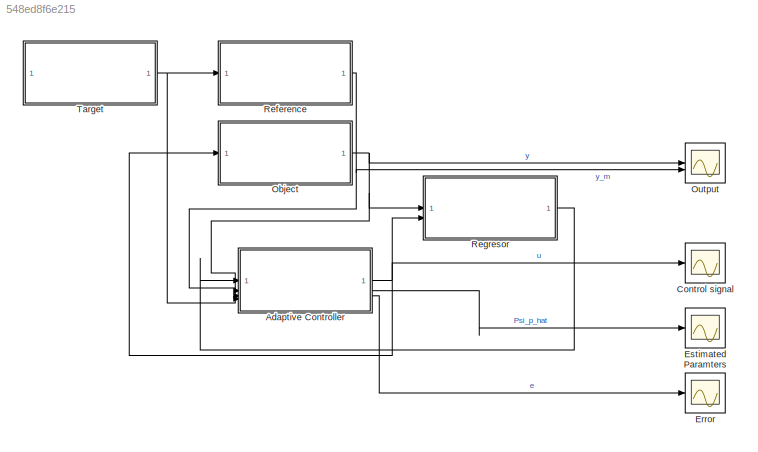
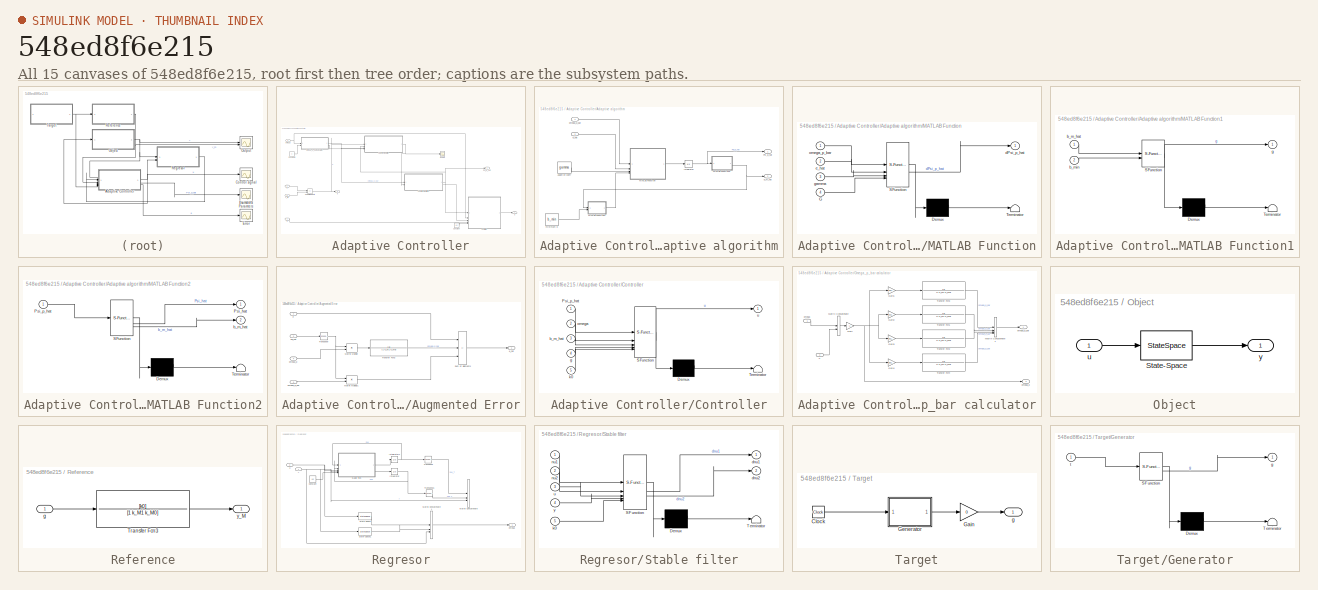
[diagram: thumbnail index - all 15 canvases of the model, root first then tree order]
MODEL slx_548ed8f6e215
KIND model
CONFIG AbsTol = auto
CONFIG EnableMultiTasking = off
CONFIG FixedStep = 1e-3
CONFIG MaxStep = auto
CONFIG MinStep = auto
CONFIG RelTol = 1e-3
CONFIG SampleTimeConstraint = Unconstrained
CONFIG SolverName = FixedStepAuto
CONFIG StartTime = 0.0
CONFIG StopTime = 200
BLOCK [SubSystem] Adaptive Controller
BLOCK [SubSystem] Adaptive Controller/Adaptive algorithm
BLOCK [Constant] Adaptive Controller/Adaptive algorithm/Adaptive coeff
  Value = gamma
BLOCK [Integrator] Adaptive Controller/Adaptive algorithm/Integrator
  InitialCondition = 1
BLOCK [SubSystem] Adaptive Controller/Adaptive algorithm/MATLAB Function
  ErrorFcn = Stateflow.Translate.translate
  PermitHierarchicalResolution = ExplicitOnly
  SFBlockType = MATLAB Function
  TreatAsAtomicUnit = on
BLOCK [Demux] Adaptive Controller/Adaptive algorithm/MATLAB Function/ Demux 
  Outputs = 1
BLOCK [S-Function] Adaptive Controller/Adaptive algorithm/MATLAB Function/ SFunction 
  EnableBusSupport = on
  FunctionName = sf_sfun
  PortCounts = [4 2]
  SFcnIsStateOwnerBlock = off
  SFunctionDeploymentMode = off
  Tag = Stateflow S-Function 3
BLOCK [Terminator] Adaptive Controller/Adaptive algorithm/MATLAB Function/ Terminator 
BLOCK [Inport] Adaptive Controller/Adaptive algorithm/MATLAB Function/G
  Port = 4
BLOCK [Outport] Adaptive Controller/Adaptive algorithm/MATLAB Function/dPsi_p_hat
BLOCK [Inport] Adaptive Controller/Adaptive algorithm/MATLAB Function/e_hat
  Port = 2
BLOCK [Inport] Adaptive Controller/Adaptive algorithm/MATLAB Function/gamma
  Port = 3
BLOCK [Inport] Adaptive Controller/Adaptive algorithm/MATLAB Function/omega_p_bar
BLOCK [SubSystem] Adaptive Controller/Adaptive algorithm/MATLAB Function1
  ErrorFcn = Stateflow.Translate.translate
  PermitHierarchicalResolution = ExplicitOnly
  SFBlockType = MATLAB Function
  TreatAsAtomicUnit = on
BLOCK [Demux] Adaptive Controller/Adaptive algorithm/MATLAB Function1/ Demux 
  Outputs = 1
BLOCK [S-Function] Adaptive Controller/Adaptive algorithm/MATLAB Function1/ SFunction 
  EnableBusSupport = on
  FunctionName = sf_sfun
  PortCounts = [2 2]
  SFcnIsStateOwnerBlock = off
  SFunctionDeploymentMode = off
  Tag = Stateflow S-Function 5
BLOCK [Terminator] Adaptive Controller/Adaptive algorithm/MATLAB Function1/ Terminator 
BLOCK [Inport] Adaptive Controller/Adaptive algorithm/MATLAB Function1/b_m_hat
BLOCK [Inport] Adaptive Controller/Adaptive algorithm/MATLAB Function1/b_min
  Port = 2
BLOCK [Outport] Adaptive Controller/Adaptive algorithm/MATLAB Function1/g
BLOCK [SubSystem] Adaptive Controller/Adaptive algorithm/MATLAB Function2
  ErrorFcn = Stateflow.Translate.translate
  PermitHierarchicalResolution = ExplicitOnly
  SFBlockType = MATLAB Function
  TreatAsAtomicUnit = on
BLOCK [Demux] Adaptive Controller/Adaptive algorithm/MATLAB Function2/ Demux 
  Outputs = 1
BLOCK [S-Function] Adaptive Controller/Adaptive algorithm/MATLAB Function2/ SFunction 
  EnableBusSupport = on
  FunctionName = sf_sfun
  PortCounts = [1 3]
  SFcnIsStateOwnerBlock = off
  SFunctionDeploymentMode = off
  Tag = Stateflow S-Function 6
BLOCK [Terminator] Adaptive Controller/Adaptive algorithm/MATLAB Function2/ Terminator 
BLOCK [Outport] Adaptive Controller/Adaptive algorithm/MATLAB Function2/Psi_hat
BLOCK [Inport] Adaptive Controller/Adaptive algorithm/MATLAB Function2/Psi_p_hat
BLOCK [Outport] Adaptive Controller/Adaptive algorithm/MATLAB Function2/b_m_hat
  Port = 2
BLOCK [Outport] Adaptive Controller/Adaptive algorithm/Psi_p_hat
BLOCK [Outport] Adaptive Controller/Adaptive algorithm/b_m_hat
  Port = 2
BLOCK [Inport] Adaptive Controller/Adaptive algorithm/e_hat
  Port = 2
BLOCK [Constant] Adaptive Controller/Adaptive algorithm/minimum b
  Value = b_min
BLOCK [Inport] Adaptive Controller/Adaptive algorithm/omega_p_bar
BLOCK [SubSystem] Adaptive Controller/Augmented Error
BLOCK [Product] Adaptive Controller/Augmented Error/Matrix Multiply
  Multiplication = Matrix(*)
BLOCK [Product] Adaptive Controller/Augmented Error/Matrix Multiply1
  Multiplication = Matrix(*)
BLOCK [Inport] Adaptive Controller/Augmented Error/Psi_hat
  Port = 2
BLOCK [Sum] Adaptive Controller/Augmented Error/Sum of Elements
  IconShape = rectangular
  Inputs = ++-
BLOCK [TransferFcn] Adaptive Controller/Augmented Error/Transfer Fcn3
  Denominator = [1 k_M1 k_M0]
BLOCK [Math] Adaptive Controller/Augmented Error/Transpose
  Operator = transpose
BLOCK [Inport] Adaptive Controller/Augmented Error/e
BLOCK [Outport] Adaptive Controller/Augmented Error/e_hat
BLOCK [Inport] Adaptive Controller/Augmented Error/omega_p
  Port = 4
BLOCK [Inport] Adaptive Controller/Augmented Error/omega_p_bar
  Port = 3
BLOCK [Constant] Adaptive Controller/Constant
  Value = k0
BLOCK [Constant] Adaptive Controller/Constant1
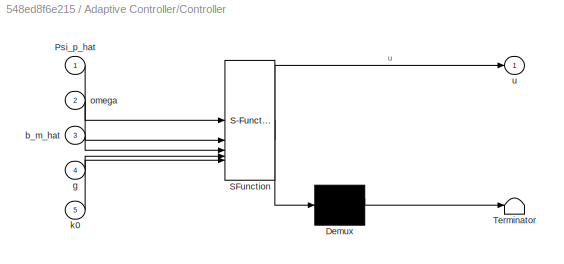
BLOCK [SubSystem] Adaptive Controller/Controller
  ErrorFcn = Stateflow.Translate.translate
  PermitHierarchicalResolution = ExplicitOnly
  SFBlockType = MATLAB Function
  TreatAsAtomicUnit = on
BLOCK [Demux] Adaptive Controller/Controller/ Demux 
  Outputs = 1
BLOCK [S-Function] Adaptive Controller/Controller/ SFunction 
  EnableBusSupport = on
  FunctionName = sf_sfun
  PortCounts = [5 2]
  SFcnIsStateOwnerBlock = off
  SFunctionDeploymentMode = off
  Tag = Stateflow S-Function 4
BLOCK [Terminator] Adaptive Controller/Controller/ Terminator 
BLOCK [Inport] Adaptive Controller/Controller/Psi_p_hat
BLOCK [Inport] Adaptive Controller/Controller/b_m_hat
  Port = 3
BLOCK [Inport] Adaptive Controller/Controller/g
  Port = 4
BLOCK [Inport] Adaptive Controller/Controller/k0
  Port = 5
BLOCK [Inport] Adaptive Controller/Controller/omega
  Port = 2
BLOCK [Outport] Adaptive Controller/Controller/u
BLOCK [SubSystem] Adaptive Controller/Omega_p_bar calculator
BLOCK [Gain] Adaptive Controller/Omega_p_bar calculator/Gain
  Gain = -1
BLOCK [Gain] Adaptive Controller/Omega_p_bar calculator/Gain1
  Gain = [1,0,0,0]
  Multiplication = Matrix(K*u)
BLOCK [Gain] Adaptive Controller/Omega_p_bar calculator/Gain2
  Gain = [0,1,0,0]
  Multiplication = Matrix(K*u)
BLOCK [Gain] Adaptive Controller/Omega_p_bar calculator/Gain3
  Gain = [0,0,1,0]
  Multiplication = Matrix(K*u)
BLOCK [Gain] Adaptive Controller/Omega_p_bar calculator/Gain4
  Gain = [0,0,0,1]
  Multiplication = Matrix(K*u)
BLOCK [Concatenate] Adaptive Controller/Omega_p_bar calculator/Matrix Concatenate
  ConcatenateDimension = 2
BLOCK [Concatenate] Adaptive Controller/Omega_p_bar calculator/Matrix Concatenate1
  ConcatenateDimension = 2
  NumInputs = 4
BLOCK [TransferFcn] Adaptive Controller/Omega_p_bar calculator/Transfer Fcn1
  Denominator = [1 k_M1 k_M0]
BLOCK [TransferFcn] Adaptive Controller/Omega_p_bar calculator/Transfer Fcn2
  Denominator = [1 k_M1 k_M0]
BLOCK [TransferFcn] Adaptive Controller/Omega_p_bar calculator/Transfer Fcn3
  Denominator = [1 k_M1 k_M0]
BLOCK [TransferFcn] Adaptive Controller/Omega_p_bar calculator/Transfer Fcn4
  Denominator = [1 k_M1 k_M0]
BLOCK [Inport] Adaptive Controller/Omega_p_bar calculator/omega
BLOCK [Outport] Adaptive Controller/Omega_p_bar calculator/omega_p
  Port = 2
BLOCK [Outport] Adaptive Controller/Omega_p_bar calculator/omega_p_bar
BLOCK [Inport] Adaptive Controller/Omega_p_bar calculator/u
  Port = 2
BLOCK [Outport] Adaptive Controller/Psi_p_hat
  Port = 2
BLOCK [Scope] Adaptive Controller/Scope
  Floating = off
  NumInputPorts = 1
  ScopeSpecificationString = Simulink.scopes.TimeScopeBlockCfg('CurrentConfiguration', extmgr.ConfigurationSet(extmgr.Configuration('Core','General UI',true),extmgr.Configuration('Core','Source UI',true),extmgr.Configuration('Sources','WiredSimulink',true,'DataLoggingVariableName','ScopeData2'),extmgr.Configuration('Visuals','Time Domain',true,'SerializedDisplays',{struct('MinYLimReal','-0.55975','MaxYLimReal','0.65608','YLab...<+1374ch>
BLOCK [Sum] Adaptive Controller/Sum of Elements
  IconShape = rectangular
  Inputs = -+
BLOCK [Outport] Adaptive Controller/e
  Port = 3
BLOCK [Inport] Adaptive Controller/g
  Port = 4
BLOCK [Inport] Adaptive Controller/omega
BLOCK [Outport] Adaptive Controller/u
BLOCK [Inport] Adaptive Controller/y
  Port = 2
BLOCK [Inport] Adaptive Controller/y_M
  Port = 3
BLOCK [Scope] Control signal
  Floating = off
  NumInputPorts = 1
  ScopeSpecificationString = Simulink.scopes.TimeScopeBlockCfg('CurrentConfiguration', extmgr.ConfigurationSet(extmgr.Configuration('Core','General UI',true,'FigureColor',[1 1 1]),extmgr.Configuration('Core','Source UI',true),extmgr.Configuration('Sources','WiredSimulink',true,'DataLoggingVariableName','ScopeData2'),extmgr.Configuration('Visuals','Time Domain',true,'SerializedDisplays',{struct('MinYLimReal','-21.53199','MaxYL...<+1800ch>
BLOCK [Scope] Error
  Floating = off
  NumInputPorts = 1
  ScopeSpecificationString = Simulink.scopes.TimeScopeBlockCfg('CurrentConfiguration', extmgr.ConfigurationSet(extmgr.Configuration('Core','General UI',true,'FigureColor',[1 1 1]),extmgr.Configuration('Core','Source UI',true),extmgr.Configuration('Sources','WiredSimulink',true,'DataLoggingVariableName','ScopeData1'),extmgr.Configuration('Visuals','Time Domain',true,'SerializedDisplays',{struct('MinYLimReal','-9.99077','MaxYLi...<+1781ch>
BLOCK [Scope] Estimated Paramters
  Floating = off
  NumInputPorts = 1
  ScopeSpecificationString = Simulink.scopes.TimeScopeBlockCfg('CurrentConfiguration', extmgr.ConfigurationSet(extmgr.Configuration('Core','General UI',true,'FigureColor',[1 1 1]),extmgr.Configuration('Core','Source UI',true),extmgr.Configuration('Sources','WiredSimulink',true,'DataLoggingVariableName','ScopeData1'),extmgr.Configuration('Visuals','Time Domain',true,'SerializedDisplays',{struct('MinYLimReal','-0.40799','MaxYLi...<+2051ch>
BLOCK [SubSystem] Object
BLOCK [StateSpace] Object/State-Space
  A = [0, 1; -a0, -a1]
  B = [0; b0]
  C = [1, 0]
  D = 0
  InitialCondition = 1
BLOCK [Inport] Object/u
BLOCK [Outport] Object/y
BLOCK [Scope] Output
  Floating = off
  NumInputPorts = 2
  ScopeSpecificationString = Simulink.scopes.TimeScopeBlockCfg('CurrentConfiguration', extmgr.ConfigurationSet(extmgr.Configuration('Core','General UI',true,'FigureColor',[1 1 1]),extmgr.Configuration('Core','Source UI',true),extmgr.Configuration('Sources','WiredSimulink',true),extmgr.Configuration('Visuals','Time Domain',true,'SerializedDisplays',{struct('MinYLimReal','-14.06927','MaxYLimReal','14.07249','YLabelReal','','Min...<+1813ch>
BLOCK [SubSystem] Reference
BLOCK [TransferFcn] Reference/Transfer Fcn3
  Denominator = [1 k_M1 k_M0]
  Numerator = [k0]
BLOCK [Inport] Reference/g
BLOCK [Outport] Reference/y_M
BLOCK [SubSystem] Regresor
BLOCK [Constant] Regresor/Constant
  Value = k0
BLOCK [Integrator] Regresor/Integrator
  Commented = on
BLOCK [Integrator] Regresor/Integrator1
  Commented = on
BLOCK [Concatenate] Regresor/Matrix Concatenate
  Commented = on
  ConcatenateDimension = 2
  NumInputs = 3
BLOCK [Concatenate] Regresor/Matrix Concatenate1
  ConcatenateDimension = 2
  NumInputs = 3
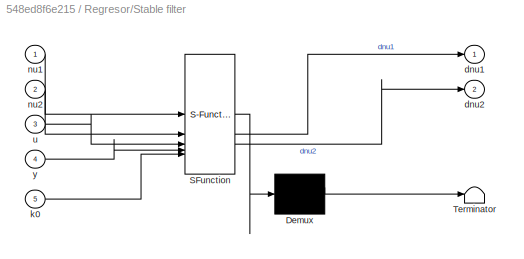
BLOCK [SubSystem] Regresor/Stable filter
  Commented = on
  ErrorFcn = Stateflow.Translate.translate
  PermitHierarchicalResolution = ExplicitOnly
  SFBlockType = MATLAB Function
  TreatAsAtomicUnit = on
BLOCK [Demux] Regresor/Stable filter/ Demux 
  Outputs = 1
BLOCK [S-Function] Regresor/Stable filter/ SFunction 
  EnableBusSupport = on
  FunctionName = sf_sfun
  PortCounts = [5 3]
  SFcnIsStateOwnerBlock = off
  SFunctionDeploymentMode = off
  Tag = Stateflow S-Function 2
BLOCK [Terminator] Regresor/Stable filter/ Terminator 
BLOCK [Outport] Regresor/Stable filter/dnu1
BLOCK [Outport] Regresor/Stable filter/dnu2
  Port = 2
BLOCK [Inport] Regresor/Stable filter/k0
  Port = 5
BLOCK [Inport] Regresor/Stable filter/nu1
BLOCK [Inport] Regresor/Stable filter/nu2
  Port = 2
BLOCK [Inport] Regresor/Stable filter/u
  Port = 3
BLOCK [Inport] Regresor/Stable filter/y
  Port = 4
BLOCK [StateSpace] Regresor/State-Space
  A = -k0
  InitialCondition = 0
BLOCK [StateSpace] Regresor/State-Space1
  A = -k0
  InitialCondition = 0
BLOCK [Math] Regresor/Transpose
  Commented = on
  Operator = transpose
BLOCK [Math] Regresor/Transpose1
  Commented = on
  Operator = transpose
BLOCK [Outport] Regresor/omega
BLOCK [Inport] Regresor/u
  Port = 2
BLOCK [Inport] Regresor/y
BLOCK [SubSystem] Target
BLOCK [Clock] Target/Clock
BLOCK [Gain] Target/Gain
  Commented = through
  Gain = 0
BLOCK [SubSystem] Target/Generator
  ErrorFcn = Stateflow.Translate.translate
  PermitHierarchicalResolution = ExplicitOnly
  SFBlockType = MATLAB Function
  TreatAsAtomicUnit = on
BLOCK [Demux] Target/Generator/ Demux 
  Outputs = 1
BLOCK [S-Function] Target/Generator/ SFunction 
  EnableBusSupport = on
  FunctionName = sf_sfun
  PortCounts = [1 2]
  SFcnIsStateOwnerBlock = off
  SFunctionDeploymentMode = off
  Tag = Stateflow S-Function 1
BLOCK [Terminator] Target/Generator/ Terminator 
BLOCK [Outport] Target/Generator/g
BLOCK [Inport] Target/Generator/t
BLOCK [Outport] Target/g
LINE Adaptive Controller/Adaptive algorithm/Adaptive coeff:1 -> Adaptive Controller/Adaptive algorithm/MATLAB Function:3
NET Adaptive Controller/Adaptive algorithm/Integrator:1 -> Adaptive Controller/Adaptive algorithm/MATLAB Function2:1, Adaptive Controller/Adaptive algorithm/Psi_p_hat:1
LINE Adaptive Controller/Adaptive algorithm/MATLAB Function1:1 -> Adaptive Controller/Adaptive algorithm/MATLAB Function:4
NET Adaptive Controller/Adaptive algorithm/MATLAB Function2:2 -> Adaptive Controller/Adaptive algorithm/MATLAB Function1:1, Adaptive Controller/Adaptive algorithm/b_m_hat:1
LINE Adaptive Controller/Adaptive algorithm/MATLAB Function:1 -> Adaptive Controller/Adaptive algorithm/Integrator:1
LINE Adaptive Controller/Adaptive algorithm/e_hat:1 -> Adaptive Controller/Adaptive algorithm/MATLAB Function:2
LINE Adaptive Controller/Adaptive algorithm/minimum b:1 -> Adaptive Controller/Adaptive algorithm/MATLAB Function1:2
LINE Adaptive Controller/Adaptive algorithm/omega_p_bar:1 -> Adaptive Controller/Adaptive algorithm/MATLAB Function:1
NET Adaptive Controller/Adaptive algorithm:1 -> Adaptive Controller/Augmented Error:2, Adaptive Controller/Controller:1, Adaptive Controller/Psi_p_hat:1
LINE Adaptive Controller/Adaptive algorithm:2 -> Adaptive Controller/Controller:3
LINE Adaptive Controller/Augmented Error/Matrix Multiply1:1 -> Adaptive Controller/Augmented Error/Sum of Elements:3
LINE Adaptive Controller/Augmented Error/Matrix Multiply:1 -> Adaptive Controller/Augmented Error/Transfer Fcn3:1
LINE Adaptive Controller/Augmented Error/Psi_hat:1 -> Adaptive Controller/Augmented Error/Transpose:1
LINE Adaptive Controller/Augmented Error/Sum of Elements:1 -> Adaptive Controller/Augmented Error/e_hat:1
LINE Adaptive Controller/Augmented Error/Transfer Fcn3:1 -> Adaptive Controller/Augmented Error/Sum of Elements:2
NET Adaptive Controller/Augmented Error/Transpose:1 -> Adaptive Controller/Augmented Error/Matrix Multiply1:1, Adaptive Controller/Augmented Error/Matrix Multiply:1
LINE Adaptive Controller/Augmented Error/e:1 -> Adaptive Controller/Augmented Error/Sum of Elements:1
LINE Adaptive Controller/Augmented Error/omega_p:1 -> Adaptive Controller/Augmented Error/Matrix Multiply:2
LINE Adaptive Controller/Augmented Error/omega_p_bar:1 -> Adaptive Controller/Augmented Error/Matrix Multiply1:2
NET Adaptive Controller/Augmented Error:1 -> Adaptive Controller/Adaptive algorithm:2, Adaptive Controller/Scope:1
LINE Adaptive Controller/Constant1:1 -> Adaptive Controller/Omega_p_bar calculator:2
LINE Adaptive Controller/Constant:1 -> Adaptive Controller/Controller:5
LINE Adaptive Controller/Controller:1 -> Adaptive Controller/u:1
LINE Adaptive Controller/Omega_p_bar calculator/Gain1:1 -> Adaptive Controller/Omega_p_bar calculator/Transfer Fcn3:1
LINE Adaptive Controller/Omega_p_bar calculator/Gain2:1 -> Adaptive Controller/Omega_p_bar calculator/Transfer Fcn1:1
LINE Adaptive Controller/Omega_p_bar calculator/Gain3:1 -> Adaptive Controller/Omega_p_bar calculator/Transfer Fcn2:1
LINE Adaptive Controller/Omega_p_bar calculator/Gain4:1 -> Adaptive Controller/Omega_p_bar calculator/Transfer Fcn4:1
NET Adaptive Controller/Omega_p_bar calculator/Gain:1 -> Adaptive Controller/Omega_p_bar calculator/Gain1:1, Adaptive Controller/Omega_p_bar calculator/Gain2:1, Adaptive Controller/Omega_p_bar calculator/Gain3:1, Adaptive Controller/Omega_p_bar calculator/Gain4:1, Adaptive Controller/Omega_p_bar calculator/omega_p:1
LINE Adaptive Controller/Omega_p_bar calculator/Matrix Concatenate1:1 -> Adaptive Controller/Omega_p_bar calculator/omega_p_bar:1
LINE Adaptive Controller/Omega_p_bar calculator/Matrix Concatenate:1 -> Adaptive Controller/Omega_p_bar calculator/Gain:1
LINE Adaptive Controller/Omega_p_bar calculator/Transfer Fcn1:1 -> Adaptive Controller/Omega_p_bar calculator/Matrix Concatenate1:2
LINE Adaptive Controller/Omega_p_bar calculator/Transfer Fcn2:1 -> Adaptive Controller/Omega_p_bar calculator/Matrix Concatenate1:3
LINE Adaptive Controller/Omega_p_bar calculator/Transfer Fcn3:1 -> Adaptive Controller/Omega_p_bar calculator/Matrix Concatenate1:1
LINE Adaptive Controller/Omega_p_bar calculator/Transfer Fcn4:1 -> Adaptive Controller/Omega_p_bar calculator/Matrix Concatenate1:4
LINE Adaptive Controller/Omega_p_bar calculator/omega:1 -> Adaptive Controller/Omega_p_bar calculator/Matrix Concatenate:1
LINE Adaptive Controller/Omega_p_bar calculator/u:1 -> Adaptive Controller/Omega_p_bar calculator/Matrix Concatenate:2
NET Adaptive Controller/Omega_p_bar calculator:1 -> Adaptive Controller/Adaptive algorithm:1, Adaptive Controller/Augmented Error:3
LINE Adaptive Controller/Omega_p_bar calculator:2 -> Adaptive Controller/Augmented Error:4
NET Adaptive Controller/Sum of Elements:1 -> Adaptive Controller/Augmented Error:1, Adaptive Controller/e:1
LINE Adaptive Controller/g:1 -> Adaptive Controller/Controller:4
NET Adaptive Controller/omega:1 -> Adaptive Controller/Controller:2, Adaptive Controller/Omega_p_bar calculator:1
LINE Adaptive Controller/y:1 -> Adaptive Controller/Sum of Elements:1
LINE Adaptive Controller/y_M:1 -> Adaptive Controller/Sum of Elements:2
NET Adaptive Controller:1 -> Control signal:1, Object:1, Regresor:2
LINE Adaptive Controller:2 -> Estimated Paramters:1
LINE Adaptive Controller:3 -> Error:1
LINE Object/State-Space:1 -> Object/y:1
LINE Object/u:1 -> Object/State-Space:1
NET Object:1 -> Adaptive Controller:2, Output:1, Regresor:1
LINE Reference/Transfer Fcn3:1 -> Reference/y_M:1
LINE Reference/g:1 -> Reference/Transfer Fcn3:1
NET Reference:1 -> Adaptive Controller:3, Output:2
LINE Regresor/Constant:1 -> Regresor/Stable filter:5
NET Regresor/Integrator1:1 -> Regresor/Stable filter:1, Regresor/Transpose:1
NET Regresor/Integrator:1 -> Regresor/Stable filter:2, Regresor/Transpose1:1
LINE Regresor/Matrix Concatenate1:1 -> Regresor/omega:1
LINE Regresor/Stable filter:1 -> Regresor/Integrator1:1
LINE Regresor/Stable filter:2 -> Regresor/Integrator:1
LINE Regresor/State-Space1:1 -> Regresor/Matrix Concatenate1:2
LINE Regresor/State-Space:1 -> Regresor/Matrix Concatenate1:1
LINE Regresor/Transpose1:1 -> Regresor/Matrix Concatenate:2
LINE Regresor/Transpose:1 -> Regresor/Matrix Concatenate:1
NET Regresor/u:1 -> Regresor/Stable filter:3, Regresor/State-Space:1
NET Regresor/y:1 -> Regresor/Matrix Concatenate1:3, Regresor/Matrix Concatenate:3, Regresor/Stable filter:4, Regresor/State-Space1:1
LINE Regresor:1 -> Adaptive Controller:1
LINE Target/Clock:1 -> Target/Generator:1
LINE Target/Gain:1 -> Target/g:1
LINE Target/Generator:1 -> Target/Gain:1
NET Target:1 -> Adaptive Controller:4, Reference:1
note: NET lines group one-source signal fan-out (src -> all destinations, sorted); 1:1 wires keep LINE
CHART Target/Generator states=1 transitions=1
  STATE_LABEL 'eML_blk_kernel()'
  STATE_LABEL 'SCRIPT:\nfunction g = fcn(t)\n\ng = 3*sign(sin(0.5*t));\n'
CHART Regresor/Stable filter states=1 transitions=1
  STATE_LABEL 'eML_blk_kernel()'
  STATE_LABEL 'SCRIPT:\nfunction [dnu1, dnu2] = fcn(nu1, nu2, u, y, k0)\n%\n% Stable filters in Lemma (R. V. Monopoli, 1974, direct control parameterization lemma )\n%\n\n%\nLambda = -k0;\ndnu1 = Lambda*nu1 + u; \ndnu2 = Lambda*nu2 + y;\n'
CHART Adaptive Controller/Adaptive algorithm/MATLAB Function states=1 transitions=1
  STATE_LABEL 'eML_blk_kernel()'
  STATE_LABEL "SCRIPT:\nfunction dPsi_p_hat = fcn(omega_p_bar, e_hat, gamma, G)\n\ndPsi_p_hat = gamma * G * omega_p_bar * e_hat / (1 + omega_p_bar'*omega_p_bar);\n\n"
CHART Adaptive Controller/Controller states=1 transitions=1
  STATE_LABEL 'eML_blk_kernel()'
  STATE_LABEL "SCRIPT:\nfunction u = fcn(Psi_p_hat, omega, b_m_hat, g, k0)\n\nu = 1/b_m_hat * (-Psi_p_hat(1:3)'*omega + k0*g);\n"
CHART Adaptive Controller/Adaptive algorithm/MATLAB Function1 states=1 transitions=1
  STATE_LABEL 'eML_blk_kernel()'
  STATE_LABEL "SCRIPT:\nfunction g = fcn(b_m_hat, b_min)\ng=0;\nif b_m_hat >= b_min\n    g = eye(1);\nelseif b_m_hat < b_min\n    xi_2n = [0,1];\n    g = eye(1) - xi_2n*xi_2n';\nend\n"
CHART Adaptive Controller/Adaptive algorithm/MATLAB Function2 states=1 transitions=1
  STATE_LABEL 'eML_blk_kernel()'
  STATE_LABEL 'SCRIPT:\nfunction [Psi_hat, b_m_hat]= fcn(Psi_p_hat)\n\nPsi_hat = Psi_p_hat(1:2);\nb_m_hat = Psi_p_hat(3);\n'
CHART  states=0 transitions=0
CHART  states=0 transitions=0
CHART  states=0 transitions=0
CHART  states=0 transitions=0
CHART  states=0 transitions=0
CHART  states=0 transitions=0
